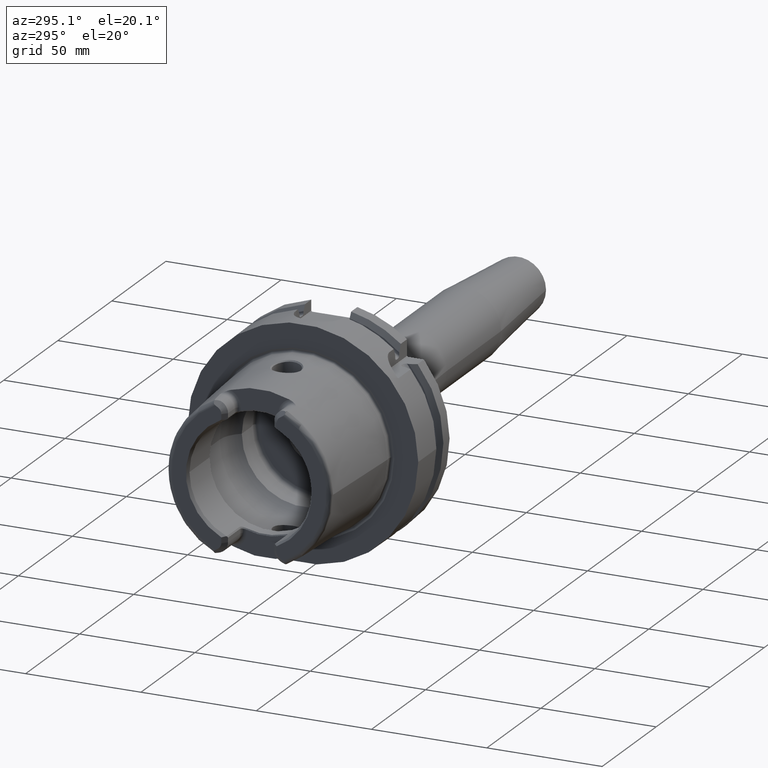
[diagram: clean part render]
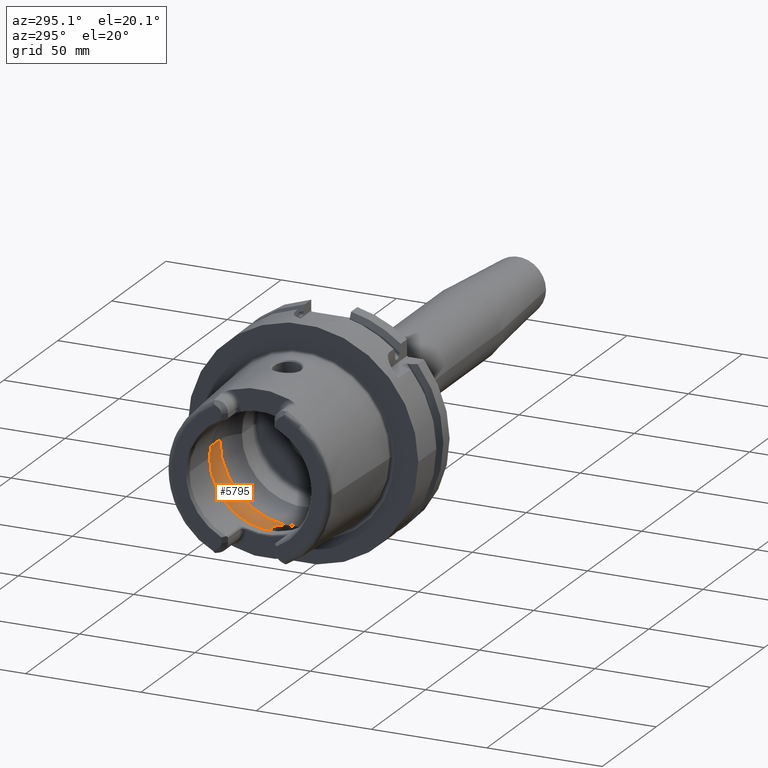
[diagram: same view with one face highlighted and labeled with its STEP entity id]
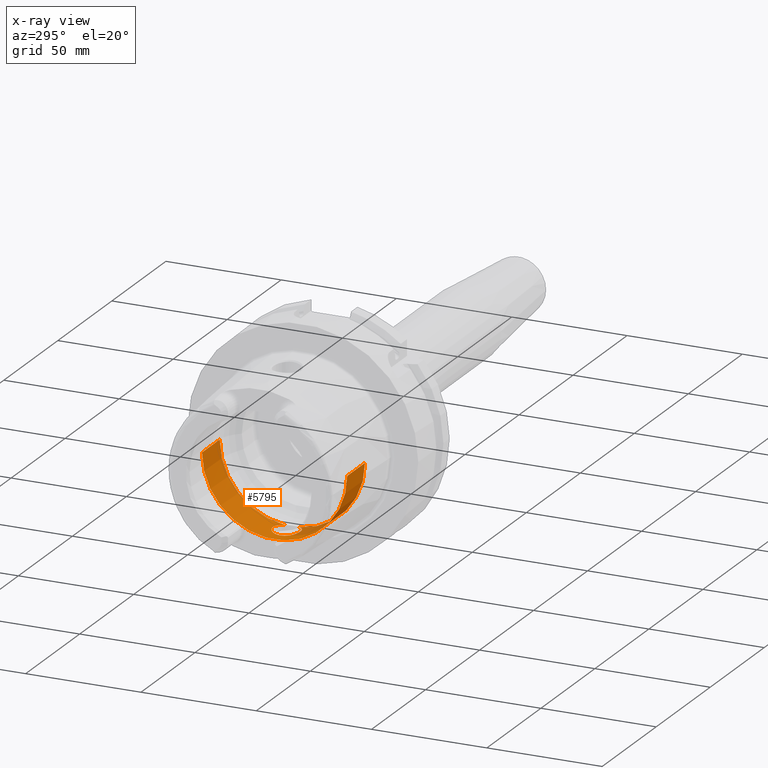
[diagram: x-ray of the same camera — body ghosted, the highlighted face saturated]
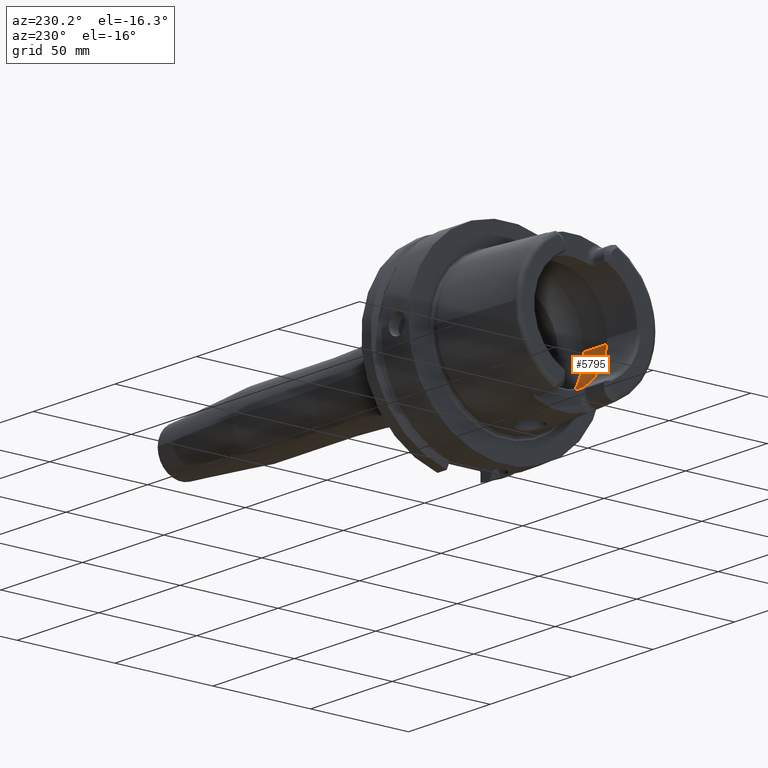
[diagram: same view with one face highlighted and labeled with its STEP entity id]
A machine part, auxiliary view. The second image highlights one B-rep face of the part: STEP entity #5795.
The next image is the same camera in x-ray: the body ghosted, the highlighted face saturated — about 5% of this face is hidden behind the body in this view.
A second angle (auxiliary view) of the same face is appended — the face is thin or edge-on in the first view.
In plain terms, the highlighted cylindrical surface (partial cylindrical patch) has radius 31.5 mm, axis along (1, 0, 0).
Its self-contained STEP definition (entity closure, byte-faithful):
#2163=CARTESIAN_POINT('',(-2.1E1,0.E0,-3.15E1));
#2164=CARTESIAN_POINT('',(-2.1E1,2.600323061180E-1,-3.15E1));
#2165=CARTESIAN_POINT('',(-2.096661770669E1,7.780092125203E-1,
-3.149361511448E1));
#2166=CARTESIAN_POINT('',(-2.081253217207E1,1.557831356964E0,
-3.146462024253E1));
#2167=CARTESIAN_POINT('',(-2.055574570683E1,2.311276553665E0,
-3.141793916189E1));
#2168=CARTESIAN_POINT('',(-2.020626936033E1,3.016750289566E0,
-3.135769789056E1));
#2169=CARTESIAN_POINT('',(-1.976601122444E1,3.673722414515E0,
-3.128719166027E1));
#2170=CARTESIAN_POINT('',(-1.923610094251E1,4.274362244914E0,
-3.121038529168E1));
#2171=CARTESIAN_POINT('',(-1.863192887465E1,4.797669158712E0,
-3.113374177159E1));
#2172=CARTESIAN_POINT('',(-1.797705422937E1,5.228767812436E0,
-3.106381618043E1));
#2173=CARTESIAN_POINT('',(-1.727328312497E1,5.571149218893E0,
-3.100390713215E1));
#2174=CARTESIAN_POINT('',(-1.652528168161E1,5.820750549838E0,
-3.095774716752E1));
#2175=CARTESIAN_POINT('',(-1.575298047354E1,5.969558117876E0,
-3.092922682144E1));
#2176=CARTESIAN_POINT('',(-1.497973962537E1,6.016520952670E0,
-3.092007277754E1));
#2177=CARTESIAN_POINT('',(-1.420754911889E1,5.964156360884E0,
-3.093027435868E1));
#2178=CARTESIAN_POINT('',(-1.345027932885E1,5.813467932253E0,
-3.095911415652E1));
#2179=CARTESIAN_POINT('',(-1.271967870279E1,5.567549612701E0,
-3.100453585674E1));
#2180=CARTESIAN_POINT('',(-1.202654252881E1,5.230424035329E0,
-3.106352122481E1));
#2181=CARTESIAN_POINT('',(-1.137895123984E1,4.805016643732E0,
-3.113255162345E1));
#2182=CARTESIAN_POINT('',(-1.079033967049E1,4.298901630879E0,
-3.120689445852E1));
#2183=CARTESIAN_POINT('',(-1.027063116687E1,3.719239024479E0,
-3.128166258912E1));
#2184=CARTESIAN_POINT('',(-9.979348326781E0,3.295456177510E0,
-3.132794036358E1));
#2185=CARTESIAN_POINT('',(-9.846794344809E0,3.073185883624E0,
-3.134972932139E1));
#2187=CARTESIAN_POINT('',(-9.846794344809E0,-3.073185883624E0,
-3.134972932139E1));
#2188=CARTESIAN_POINT('',(-9.980267592034E0,-3.296997627679E0,
-3.132778925661E1));
#2189=CARTESIAN_POINT('',(-1.027428374945E1,-3.724632451493E0,
-3.128107498049E1));
#2190=CARTESIAN_POINT('',(-1.080444609373E1,-4.313598102782E0,
-3.120491822807E1));
#2191=CARTESIAN_POINT('',(-1.140518288188E1,-4.825083200941E0,
-3.112945268139E1));
#2192=CARTESIAN_POINT('',(-1.205830347901E1,-5.248491279341E0,
-3.106046243563E1));
#2193=CARTESIAN_POINT('',(-1.275973274351E1,-5.584361629649E0,
-3.100151169777E1));
#2194=CARTESIAN_POINT('',(-1.350804961755E1,-5.829351893619E0,
-3.095611954416E1));
#2195=CARTESIAN_POINT('',(-1.428046132242E1,-5.973692441151E0,
-3.092842373405E1));
#2196=CARTESIAN_POINT('',(-1.505471261768E1,-6.016295068305E0,
-3.092011685270E1));
#2197=CARTESIAN_POINT('',(-1.582807827324E1,-5.959638584634E0,
-3.093115085218E1));
#2198=CARTESIAN_POINT('',(-1.659844154856E1,-5.801063635706E0,
-3.096146461693E1));
#2199=CARTESIAN_POINT('',(-1.734174730538E1,-5.542557460315E0,
-3.100905659353E1));
#2200=CARTESIAN_POINT('',(-1.803699861300E1,-5.193928840565E0,
-3.106968398001E1));
#2201=CARTESIAN_POINT('',(-1.868261407792E1,-4.758494760219E0,
-3.113976584786E1));
#2202=CARTESIAN_POINT('',(-1.927492183405E1,-4.234938547310E0,
-3.121575046881E1));
#2203=CARTESIAN_POINT('',(-1.979338991235E1,-3.637181048324E0,
-3.129142862807E1));
#2204=CARTESIAN_POINT('',(-2.022350943177E1,-2.985970626913E0,
-3.136060026546E1));
#2205=CARTESIAN_POINT('',(-2.056558062715E1,-2.286490117879E0,
-3.141969944443E1));
#2206=CARTESIAN_POINT('',(-2.081663060842E1,-1.540888222611E0,
-3.146538707330E1));
#2207=CARTESIAN_POINT('',(-2.096737197130E1,-7.693136660163E-1,
-3.149375977797E1));
#2208=CARTESIAN_POINT('',(-2.1E1,-2.570924323293E-1,-3.15E1));
#2209=CARTESIAN_POINT('',(-2.1E1,0.E0,-3.15E1));
#2211=CARTESIAN_POINT('',(-9.846794344809E0,0.E0,0.E0));
#2212=DIRECTION('',(-1.E0,0.E0,0.E0));
#2213=DIRECTION('',(0.E0,-9.756145662299E-2,-9.952295022665E-1));
#2214=AXIS2_PLACEMENT_3D('',#2211,#2212,#2213);
#2216=DIRECTION('',(-1.E0,0.E0,0.E0));
#2217=VECTOR('',#2216,1.640380457843E1);
#2218=CARTESIAN_POINT('',(-9.846794344809E0,-3.15E1,0.E0));
#2219=LINE('',#2218,#2217);
#2220=DIRECTION('',(-1.E0,0.E0,0.E0));
#2221=VECTOR('',#2220,1.640380457843E1);
#2222=CARTESIAN_POINT('',(-9.846794344809E0,3.15E1,0.E0));
#2223=LINE('',#2222,#2221);
#2224=CARTESIAN_POINT('',(-9.846794344809E0,0.E0,0.E0));
#2225=DIRECTION('',(-1.E0,0.E0,0.E0));
#2226=DIRECTION('',(0.E0,1.E0,0.E0));
#2227=AXIS2_PLACEMENT_3D('',#2224,#2225,#2226);
#2229=CARTESIAN_POINT('',(-9.846794344809E0,3.073185883624E0,
-3.134972932139E1));
#2260=CARTESIAN_POINT('',(-9.846794344809E0,-3.073185883624E0,
-3.134972932139E1));
#2463=CARTESIAN_POINT('',(-2.625059892324E1,0.E0,0.E0));
#2464=DIRECTION('',(-1.E0,0.E0,0.E0));
#2465=DIRECTION('',(0.E0,1.E0,0.E0));
#2466=AXIS2_PLACEMENT_3D('',#2463,#2464,#2465);
#2755=CARTESIAN_POINT('',(-9.846794344809E0,3.15E1,0.E0));
#2756=VERTEX_POINT('',#2755);
#2757=CARTESIAN_POINT('',(-2.625059892324E1,3.15E1,0.E0));
#2758=VERTEX_POINT('',#2757);
#2767=CARTESIAN_POINT('',(-9.846794344809E0,-3.15E1,0.E0));
#2768=VERTEX_POINT('',#2767);
#2769=CARTESIAN_POINT('',(-2.625059892324E1,-3.15E1,0.E0));
#2770=VERTEX_POINT('',#2769);
#2938=VERTEX_POINT('',#2229);
#2940=VERTEX_POINT('',#2260);
#2941=VERTEX_POINT('',#2163);
#5778=CARTESIAN_POINT('',(-5.3125E1,0.E0,0.E0));
#5779=DIRECTION('',(1.E0,0.E0,0.E0));
#5780=DIRECTION('',(0.E0,-1.E0,0.E0));
#5781=AXIS2_PLACEMENT_3D('',#5778,#5779,#5780);
#5782=CYLINDRICAL_SURFACE('',#5781,3.15E1);
#5783=ORIENTED_EDGE('',*,*,#5732,.F.);
#5784=ORIENTED_EDGE('',*,*,#5460,.F.);
#5786=ORIENTED_EDGE('',*,*,#5785,.T.);
#5787=ORIENTED_EDGE('',*,*,#5771,.T.);
#5789=ORIENTED_EDGE('',*,*,#5788,.F.);
#5790=ORIENTED_EDGE('',*,*,#5767,.F.);
#5792=ORIENTED_EDGE('',*,*,#5791,.T.);
#5793=EDGE_LOOP('',(#5783,#5784,#5786,#5787,#5789,#5790,#5792));
#5794=FACE_OUTER_BOUND('',#5793,.F.);
#5795=ADVANCED_FACE('',(#5794),#5782,.F.);
#2186=B_SPLINE_CURVE_WITH_KNOTS('',3,(#2163,#2164,#2165,#2166,#2167,#2168,#2169,
#2170,#2171,#2172,#2173,#2174,#2175,#2176,#2177,#2178,#2179,#2180,#2181,#2182,
#2183,#2184,#2185),.UNSPECIFIED.,.F.,.F.,(4,1,1,1,1,1,1,1,1,1,1,1,1,1,1,1,1,1,1,
1,4),(0.E0,5.E-2,1.E-1,1.5E-1,2.E-1,2.5E-1,3.E-1,3.5E-1,4.E-1,4.5E-1,5.E-1,
5.5E-1,6.E-1,6.5E-1,7.E-1,7.5E-1,8.E-1,8.5E-1,9.E-1,9.5E-1,1.E0),.UNSPECIFIED.);
#2210=B_SPLINE_CURVE_WITH_KNOTS('',3,(#2187,#2188,#2189,#2190,#2191,#2192,#2193,
#2194,#2195,#2196,#2197,#2198,#2199,#2200,#2201,#2202,#2203,#2204,#2205,#2206,
#2207,#2208,#2209),.UNSPECIFIED.,.F.,.F.,(4,1,1,1,1,1,1,1,1,1,1,1,1,1,1,1,1,1,1,
1,4),(0.E0,5.E-2,1.E-1,1.5E-1,2.E-1,2.5E-1,3.E-1,3.5E-1,4.E-1,4.5E-1,5.E-1,
5.5E-1,6.E-1,6.5E-1,7.E-1,7.5E-1,8.E-1,8.5E-1,9.E-1,9.5E-1,1.E0),.UNSPECIFIED.);
#2215=CIRCLE('',#2214,3.15E1);
#2228=CIRCLE('',#2227,3.15E1);
#2467=CIRCLE('',#2466,3.15E1);
#5460=EDGE_CURVE('',#2940,#2941,#2210,.T.);
#5732=EDGE_CURVE('',#2941,#2938,#2186,.T.);
#5767=EDGE_CURVE('',#2756,#2758,#2223,.T.);
#5771=EDGE_CURVE('',#2768,#2770,#2219,.T.);
#5785=EDGE_CURVE('',#2940,#2768,#2215,.T.);
#5788=EDGE_CURVE('',#2758,#2770,#2467,.T.);
#5791=EDGE_CURVE('',#2756,#2938,#2228,.T.);